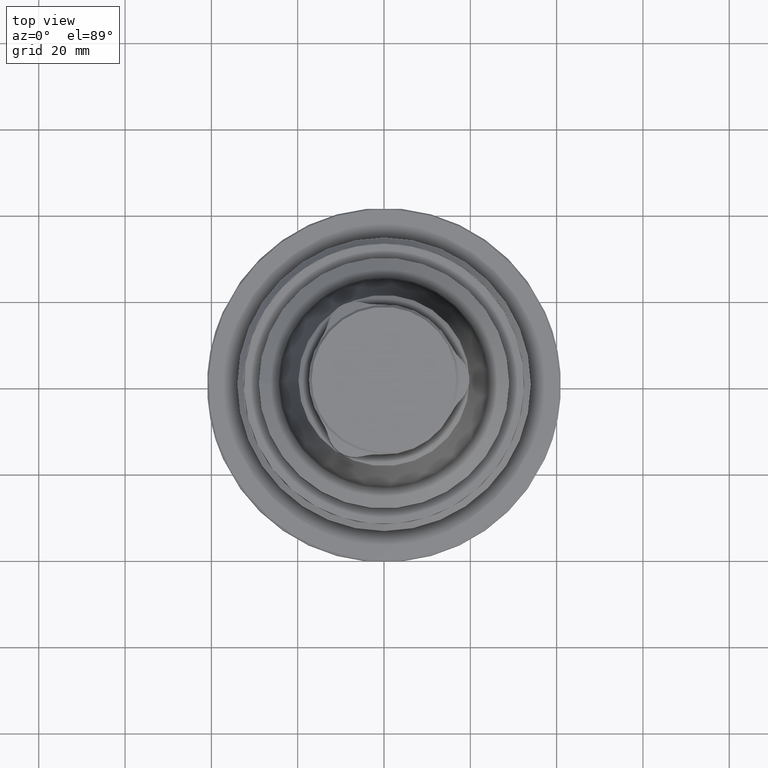
[diagram: clean part render]
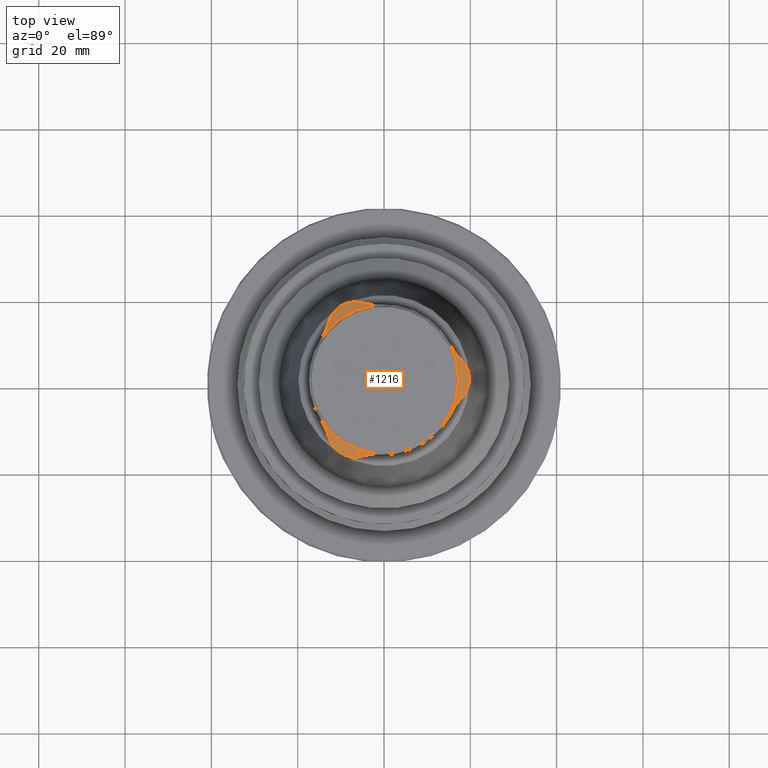
[diagram: same view with one face highlighted and labeled with its STEP entity id]
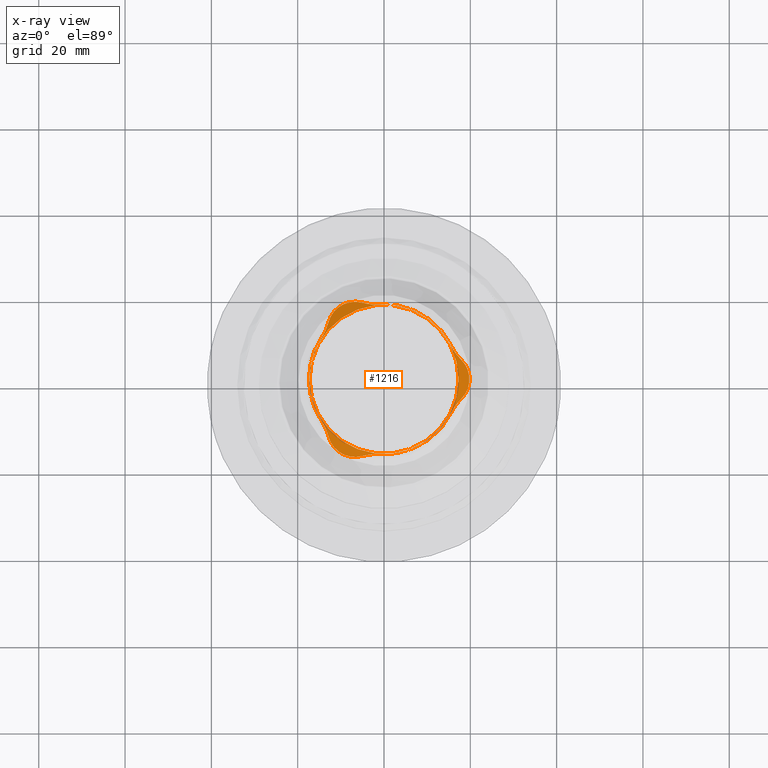
[diagram: x-ray of the same camera — body ghosted, the highlighted face saturated]
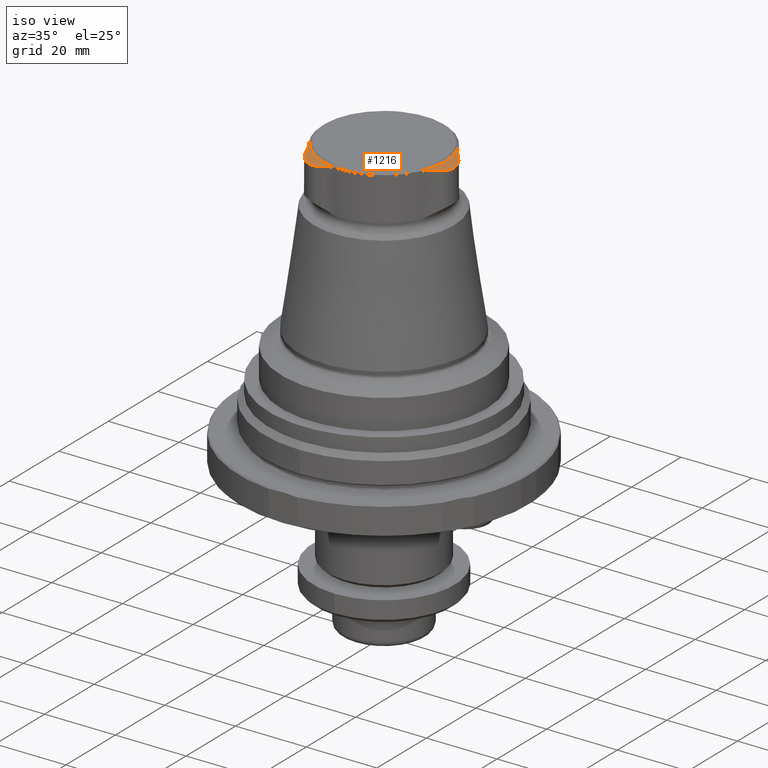
[diagram: same view with one face highlighted and labeled with its STEP entity id]
A machine part, top view. The second image highlights one B-rep face of the part: STEP entity #1216.
The next image is the same camera in x-ray: the body ghosted, the highlighted face saturated — about 0% of this face is hidden behind the body in this view.
A second angle (iso view) of the same face is appended — the face is thin or edge-on in the first view.
In plain terms, the highlighted conical surface has half-angle 70 deg.
Its self-contained STEP definition (entity closure, byte-faithful):
#141=B_SPLINE_CURVE_WITH_KNOTS('',3,(#2102,#2103,#2104,#2105,#2106,#2107,
#2108),.UNSPECIFIED.,.F.,.F.,(4,1,1,1,4),(2.0766815172345E-7,0.00249926787192999,
0.00499832807570825,0.00749738827948652,0.00999644848326478),
 .UNSPECIFIED.);
#143=B_SPLINE_CURVE_WITH_KNOTS('',3,(#2123,#2124,#2125,#2126,#2127,#2128,
#2129),.UNSPECIFIED.,.F.,.F.,(4,1,1,1,4),(2.84118447355397E-7,0.00249934494895464,
0.00499840577946193,0.00749746660996922,0.0099965274404765),
 .UNSPECIFIED.);
#145=B_SPLINE_CURVE_WITH_KNOTS('',3,(#2144,#2145,#2146,#2147,#2148,#2149,
#2150),.UNSPECIFIED.,.F.,.F.,(4,1,1,1,4),(2.07803058901957E-7,0.00249926800682696,
0.00499832821059502,0.00749738841436308,0.00999644861813114),
 .UNSPECIFIED.);
#147=B_SPLINE_CURVE_WITH_KNOTS('',3,(#2162,#2163,#2164,#2165),
 .UNSPECIFIED.,.F.,.F.,(4,4),(2.83434822628889E-7,0.00414688221804348),
 .UNSPECIFIED.);
#148=B_SPLINE_CURVE_WITH_KNOTS('',3,(#2169,#2170,#2171,#2172),
 .UNSPECIFIED.,.F.,.F.,(4,4),(1.96831898037679E-7,0.00414679561513131),
 .UNSPECIFIED.);
#149=B_SPLINE_CURVE_WITH_KNOTS('',3,(#2173,#2174,#2175,#2176),
 .UNSPECIFIED.,.F.,.F.,(4,4),(2.07171479878991E-7,0.00414680595470801),
 .UNSPECIFIED.);
#150=B_SPLINE_CURVE_WITH_KNOTS('',3,(#2180,#2181,#2182,#2183),
 .UNSPECIFIED.,.F.,.F.,(4,4),(2.34858083308878E-7,0.00414683364131143),
 .UNSPECIFIED.);
#151=B_SPLINE_CURVE_WITH_KNOTS('',3,(#2184,#2185,#2186,#2187),
 .UNSPECIFIED.,.F.,.F.,(4,4),(2.07305202995405E-7,0.00414680608843627),
 .UNSPECIFIED.);
#152=B_SPLINE_CURVE_WITH_KNOTS('',3,(#2191,#2192,#2193,#2194),
 .UNSPECIFIED.,.F.,.F.,(4,4),(2.20179190705776E-7,0.00414681896241157),
 .UNSPECIFIED.);
#210=CONICAL_SURFACE('',#1373,19.8,1.22173047639603);
#444=ORIENTED_EDGE('',*,*,#647,.T.);
#445=ORIENTED_EDGE('',*,*,#660,.T.);
#446=ORIENTED_EDGE('',*,*,#661,.T.);
#447=ORIENTED_EDGE('',*,*,#662,.T.);
#448=ORIENTED_EDGE('',*,*,#657,.T.);
#449=ORIENTED_EDGE('',*,*,#663,.T.);
#450=ORIENTED_EDGE('',*,*,#664,.T.);
#451=ORIENTED_EDGE('',*,*,#665,.T.);
#452=ORIENTED_EDGE('',*,*,#649,.T.);
#453=ORIENTED_EDGE('',*,*,#666,.T.);
#454=ORIENTED_EDGE('',*,*,#667,.T.);
#455=ORIENTED_EDGE('',*,*,#668,.T.);
#456=ORIENTED_EDGE('',*,*,#653,.T.);
#647=EDGE_CURVE('',#780,#780,#877,.T.);
#649=EDGE_CURVE('',#783,#782,#141,.T.);
#653=EDGE_CURVE('',#787,#786,#143,.T.);
#657=EDGE_CURVE('',#791,#790,#145,.T.);
#660=EDGE_CURVE('',#786,#793,#147,.T.);
#661=EDGE_CURVE('',#793,#794,#878,.F.);
#662=EDGE_CURVE('',#794,#791,#148,.T.);
#663=EDGE_CURVE('',#790,#795,#149,.T.);
#664=EDGE_CURVE('',#795,#796,#879,.F.);
#665=EDGE_CURVE('',#796,#783,#150,.T.);
#666=EDGE_CURVE('',#782,#797,#151,.T.);
#667=EDGE_CURVE('',#797,#798,#880,.F.);
#668=EDGE_CURVE('',#798,#787,#152,.T.);
#780=VERTEX_POINT('',#2097);
#782=VERTEX_POINT('',#2101);
#783=VERTEX_POINT('',#2109);
#786=VERTEX_POINT('',#2122);
#787=VERTEX_POINT('',#2130);
#790=VERTEX_POINT('',#2143);
#791=VERTEX_POINT('',#2151);
#793=VERTEX_POINT('',#2166);
#794=VERTEX_POINT('',#2168);
#795=VERTEX_POINT('',#2177);
#796=VERTEX_POINT('',#2179);
#797=VERTEX_POINT('',#2188);
#798=VERTEX_POINT('',#2190);
#877=CIRCLE('',#1369,17.28);
#878=CIRCLE('',#1374,17.38);
#879=CIRCLE('',#1375,17.38);
#880=CIRCLE('',#1376,17.38);
#988=EDGE_LOOP('',(#444));
#989=EDGE_LOOP('',(#445,#446,#447,#448,#449,#450,#451,#452,#453,#454,#455,
#456));
#1113=FACE_BOUND('',#988,.T.);
#1114=FACE_BOUND('',#989,.T.);
#1216=ADVANCED_FACE('',(#1113,#1114),#210,.T.);
#1369=AXIS2_PLACEMENT_3D('',#2096,#1674,#1675);
#1373=AXIS2_PLACEMENT_3D('',#2161,#1688,#1689);
#1374=AXIS2_PLACEMENT_3D('',#2167,#1690,#1691);
#1375=AXIS2_PLACEMENT_3D('',#2178,#1692,#1693);
#1376=AXIS2_PLACEMENT_3D('',#2189,#1694,#1695);
#1674=DIRECTION('',(1.22461692971323E-16,1.66533453693774E-16,-1.));
#1675=DIRECTION('',(-1.,2.03939686757009E-32,-1.22461692971323E-16));
#1688=DIRECTION('',(1.22461692971323E-16,1.66533453693774E-16,-1.));
#1689=DIRECTION('',(-1.,2.03939686757009E-32,-1.22461692971323E-16));
#1690=DIRECTION('',(1.22461692971323E-16,1.66533453693774E-16,-1.));
#1691=DIRECTION('',(-1.,2.03939686757009E-32,-1.22461692971323E-16));
#1692=DIRECTION('',(1.22461692971323E-16,1.66533453693774E-16,-1.));
#1693=DIRECTION('',(-1.,2.03939686757009E-32,-1.22461692971323E-16));
#1694=DIRECTION('',(1.22461692971323E-16,1.66533453693774E-16,-1.));
#1695=DIRECTION('',(-1.,2.03939686757009E-32,-1.22461692971323E-16));
#2096=CARTESIAN_POINT('',(6.13489447290812E-17,-1.80411241501588E-15,72.5));
#2097=CARTESIAN_POINT('',(-17.28,-1.80411241501588E-15,72.5));
#2101=CARTESIAN_POINT('',(-5.07416735422223,-17.7797014542112,72.0597450497322));
#2102=CARTESIAN_POINT('',(-12.8605894539389,-13.2842085589157,72.0597450497322));
#2103=CARTESIAN_POINT('',(-12.6466533599259,-14.0864641600289,71.9041145756941));
#2104=CARTESIAN_POINT('',(-11.9068940730349,-15.5972771575677,71.6659092088544));
#2105=CARTESIAN_POINT('',(-9.98587036310338,-17.2923747424392,71.5414607373422));
#2106=CARTESIAN_POINT('',(-7.56245300967274,-18.1096319581951,71.6650186118005));
#2107=CARTESIAN_POINT('',(-5.87598384084686,-17.995575276468,71.9041000735754));
#2108=CARTESIAN_POINT('',(-5.07416735422223,-17.7797014542112,72.0597450497322));
#2109=CARTESIAN_POINT('',(-12.8605894539389,-13.2842085589157,72.0597450497322));
#2122=CARTESIAN_POINT('',(17.9347568081611,4.49549289529549,72.0597450497322));
#2123=CARTESIAN_POINT('',(17.9347568081611,-4.4954928952955,72.0597450497322));
#2124=CARTESIAN_POINT('',(18.5225614419484,-3.90909205012795,71.9041148537236));
#2125=CARTESIAN_POINT('',(19.4610857320775,-2.51303377295625,71.6659090895393));
#2126=CARTESIAN_POINT('',(19.9685709394265,-0.00183002506946684,71.5414607556683));
#2127=CARTESIAN_POINT('',(19.4646276304976,2.50554054900793,71.6650186576712));
#2128=CARTESIAN_POINT('',(18.5226164935731,3.9090371299769,71.9041002779706));
#2129=CARTESIAN_POINT('',(17.9347568081611,4.49549289529549,72.0597450497322));
#2130=CARTESIAN_POINT('',(17.9347568081611,-4.4954928952955,72.0597450497322));
#2143=CARTESIAN_POINT('',(-12.8605894539389,13.2842085589157,72.0597450497322));
#2144=CARTESIAN_POINT('',(-5.07416735422223,17.7797014542112,72.0597450497322));
#2145=CARTESIAN_POINT('',(-5.87590912923549,17.9955551617892,71.9041145762542));
#2146=CARTESIAN_POINT('',(-7.55419121162805,18.1103113265225,71.6659092087945));
#2147=CARTESIAN_POINT('',(-9.98270063513308,17.2942047855116,71.5414607373919));
#2148=CARTESIAN_POINT('',(-11.9021748230453,15.6040924017104,71.6650186116627));
#2149=CARTESIAN_POINT('',(-12.6466334241237,14.0865389188441,71.9041000731467));
#2150=CARTESIAN_POINT('',(-12.8605894539389,13.2842085589157,72.0597450497322));
#2151=CARTESIAN_POINT('',(-5.07416735422223,17.7797014542112,72.0597450497322));
#2161=CARTESIAN_POINT('',(1.7367142064919E-16,-1.65136710022759E-15,71.5827950096492));
#2162=CARTESIAN_POINT('',(17.9347568081611,4.49549289529549,72.0597450497322));
#2163=CARTESIAN_POINT('',(16.9570915254707,5.47082332841375,72.3185967681944));
#2164=CARTESIAN_POINT('',(16.1470694752683,6.58142616004305,72.4636029765734));
#2165=CARTESIAN_POINT('',(15.5127934294476,7.8369407306224,72.4636029765734));
#2166=CARTESIAN_POINT('',(15.5127934294476,7.8369407306224,72.4636029765734));
#2167=CARTESIAN_POINT('',(6.58061858370224E-17,-1.79805109300047E-15,72.4636029765734));
#2168=CARTESIAN_POINT('',(-0.969406954051805,17.3529435588731,72.4636029765734));
#2169=CARTESIAN_POINT('',(-0.969406954051806,17.3529435588731,72.4636029765734));
#2170=CARTESIAN_POINT('',(-2.37385188356233,17.2744854761489,72.4636029765734));
#2171=CARTESIAN_POINT('',(-3.74067322401379,17.4206835496818,72.3185968762582));
#2172=CARTESIAN_POINT('',(-5.07416735422223,17.7797014542112,72.0597450497322));
#2173=CARTESIAN_POINT('',(-12.8605894539389,13.2842085589157,72.0597450497322));
#2174=CARTESIAN_POINT('',(-13.2164180061183,11.9498593910542,72.318596958324));
#2175=CARTESIAN_POINT('',(-13.7732175706502,10.6930583877335,72.4636029765734));
#2176=CARTESIAN_POINT('',(-14.5433864753958,9.51600282825071,72.4636029765734));
#2177=CARTESIAN_POINT('',(-14.5433864753958,9.51600282825071,72.4636029765734));
#2178=CARTESIAN_POINT('',(6.58061858370224E-17,-1.79805109300047E-15,72.4636029765734));
#2179=CARTESIAN_POINT('',(-14.5433864753958,-9.51600282825072,72.4636029765734));
#2180=CARTESIAN_POINT('',(-14.5433864753958,-9.51600282825072,72.4636029765734));
#2181=CARTESIAN_POINT('',(-13.7732175706502,-10.6930583877335,72.4636029765734));
#2182=CARTESIAN_POINT('',(-13.2164180061183,-11.9498593910542,72.318596958324));
#2183=CARTESIAN_POINT('',(-12.8605894539389,-13.2842085589157,72.0597450497322));
#2184=CARTESIAN_POINT('',(-5.07416735422223,-17.7797014542112,72.0597450497322));
#2185=CARTESIAN_POINT('',(-3.74067322401379,-17.4206835496818,72.3185968762582));
#2186=CARTESIAN_POINT('',(-2.37385188356233,-17.2744854761489,72.4636029765734));
#2187=CARTESIAN_POINT('',(-0.969406954051808,-17.3529435588731,72.4636029765734));
#2188=CARTESIAN_POINT('',(-0.969406954051807,-17.3529435588731,72.4636029765734));
#2189=CARTESIAN_POINT('',(6.58061858370224E-17,-1.79805109300047E-15,72.4636029765734));
#2190=CARTESIAN_POINT('',(15.5127934294476,-7.83694073062241,72.4636029765734));
#2191=CARTESIAN_POINT('',(15.5127934294476,-7.83694073062242,72.4636029765734));
#2192=CARTESIAN_POINT('',(16.1470694752683,-6.58142616004306,72.4636029765734));
#2193=CARTESIAN_POINT('',(16.9570915254707,-5.47082332841375,72.3185967681944));
#2194=CARTESIAN_POINT('',(17.9347568081611,-4.4954928952955,72.0597450497322));